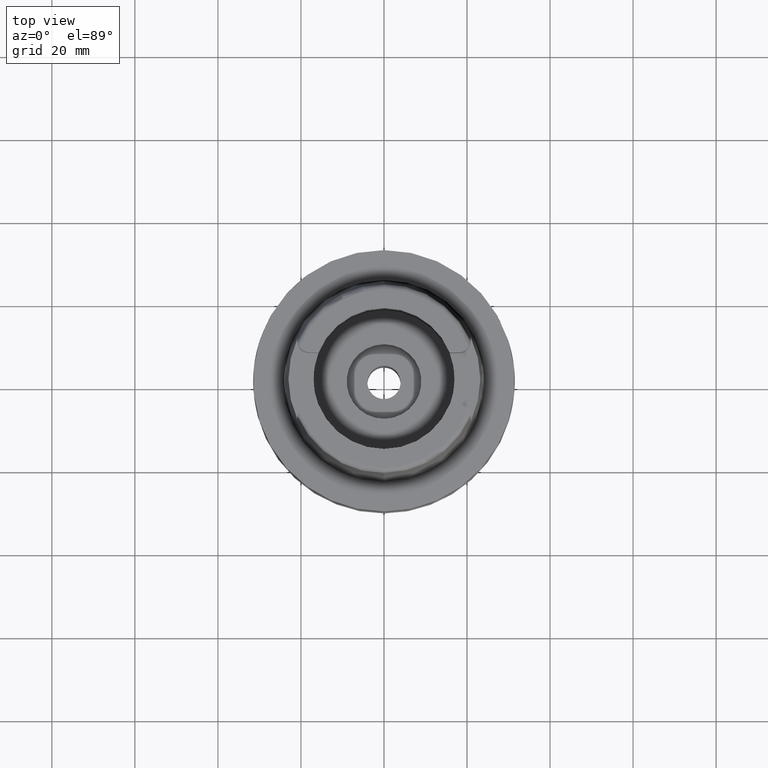
[diagram: clean part render]
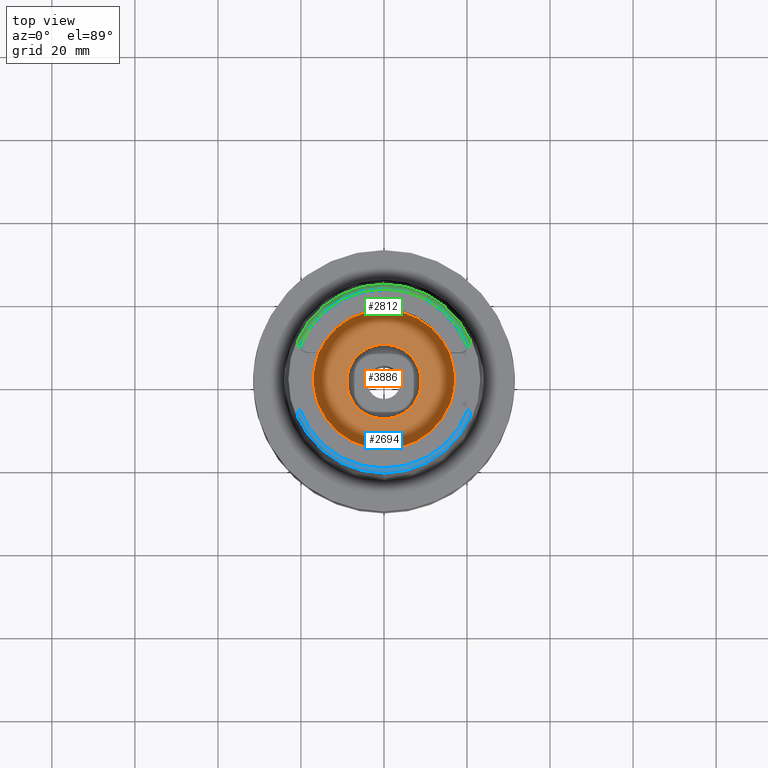
[diagram: same view with three faces highlighted in distinct colors, each labeled with its STEP entity id]
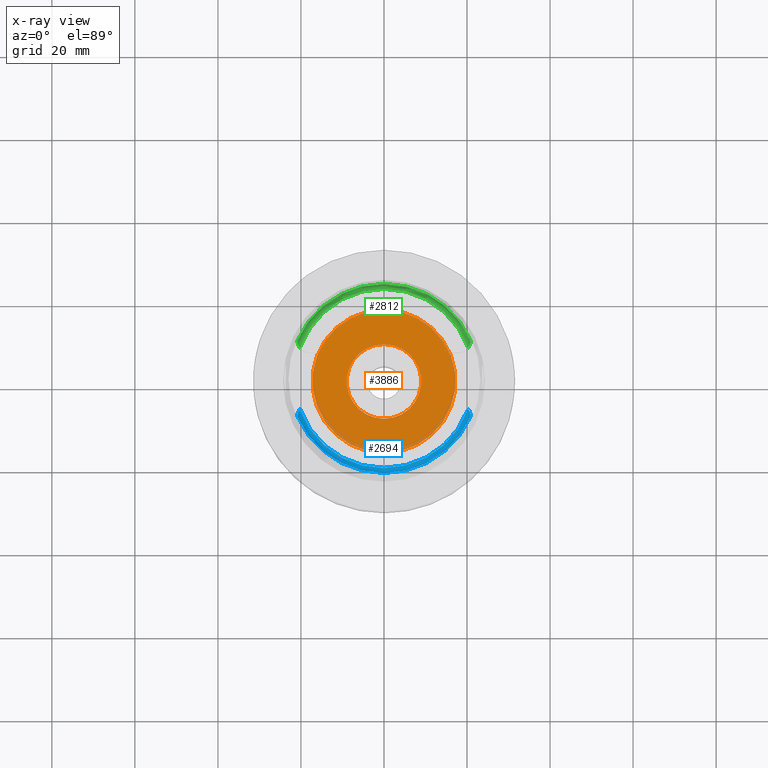
[diagram: x-ray of the same camera — body ghosted, the three highlighted faces saturated]
A machine part, top view with three faces highlighted in distinct colors.
The next image is the same camera in x-ray (body ghosted, the three faces saturated) — at least one of them is partly hidden behind the body in this view.
Their STEP definitions:

[orange] entity #3886 — the highlighted planar face has unit normal (0, 0, 1).
#1887=CARTESIAN_POINT('',(0.E0,0.E0,-9.95E0));
#1888=DIRECTION('',(0.E0,0.E0,-1.E0));
#1889=DIRECTION('',(0.E0,-1.E0,0.E0));
#1890=AXIS2_PLACEMENT_3D('',#1887,#1888,#1889);
#1895=CARTESIAN_POINT('',(0.E0,0.E0,-9.95E0));
#1896=DIRECTION('',(0.E0,0.E0,-1.E0));
#1897=DIRECTION('',(0.E0,1.E0,0.E0));
#1898=AXIS2_PLACEMENT_3D('',#1895,#1896,#1897);
#1903=CARTESIAN_POINT('',(0.E0,0.E0,-9.95E0));
#1904=DIRECTION('',(0.E0,0.E0,1.E0));
#1905=DIRECTION('',(0.E0,-1.E0,0.E0));
#1906=AXIS2_PLACEMENT_3D('',#1903,#1904,#1905);
#1911=CARTESIAN_POINT('',(0.E0,0.E0,-9.95E0));
#1912=DIRECTION('',(0.E0,0.E0,1.E0));
#1913=DIRECTION('',(0.E0,1.E0,0.E0));
#1914=AXIS2_PLACEMENT_3D('',#1911,#1912,#1913);
#2331=CARTESIAN_POINT('',(0.E0,1.725E1,-9.95E0));
#2332=VERTEX_POINT('',#2331);
#2333=CARTESIAN_POINT('',(0.E0,-1.725E1,-9.95E0));
#2334=VERTEX_POINT('',#2333);
#2335=CARTESIAN_POINT('',(0.E0,-9.E0,-9.95E0));
#2336=CARTESIAN_POINT('',(0.E0,9.E0,-9.95E0));
#2337=VERTEX_POINT('',#2335);
#2338=VERTEX_POINT('',#2336);
#3871=CARTESIAN_POINT('',(0.E0,0.E0,-9.95E0));
#3872=DIRECTION('',(0.E0,0.E0,1.E0));
#3873=DIRECTION('',(0.E0,1.E0,0.E0));
#3874=AXIS2_PLACEMENT_3D('',#3871,#3872,#3873);
#3875=PLANE('',#3874);
#3877=ORIENTED_EDGE('',*,*,#3876,.T.);
#3879=ORIENTED_EDGE('',*,*,#3878,.T.);
#3880=EDGE_LOOP('',(#3877,#3879));
#3881=FACE_OUTER_BOUND('',#3880,.F.);
#3882=ORIENTED_EDGE('',*,*,#3864,.T.);
#3883=ORIENTED_EDGE('',*,*,#3853,.T.);
#3884=EDGE_LOOP('',(#3882,#3883));
#3885=FACE_BOUND('',#3884,.F.);
#1891=CIRCLE('',#1890,1.725E1);
#1899=CIRCLE('',#1898,1.725E1);
#1907=CIRCLE('',#1906,9.E0);
#1915=CIRCLE('',#1914,9.E0);
#3853=EDGE_CURVE('',#2338,#2337,#1915,.T.);
#3864=EDGE_CURVE('',#2337,#2338,#1907,.T.);
#3876=EDGE_CURVE('',#2334,#2332,#1891,.T.);
#3878=EDGE_CURVE('',#2332,#2334,#1899,.T.);
#3886=ADVANCED_FACE('',(#3881,#3885),#3875,.T.);

[blue] entity #2694 — the highlighted toroidal blend (fillet) surface has major radius 21.5735 mm and minor (blend) radius 1.2 mm.
#185=CARTESIAN_POINT('',(0.E0,0.E0,3.2E1));
#186=DIRECTION('',(0.E0,0.E0,-1.E0));
#187=DIRECTION('',(9.395199128801E-1,-3.424942821446E-1,0.E0));
#188=AXIS2_PLACEMENT_3D('',#185,#186,#187);
#207=CARTESIAN_POINT('',(-2.086974104061E1,-9.111384044678E0,3.085992600048E1));
#208=CARTESIAN_POINT('',(-2.086967978479E1,-9.106815914010E0,3.089760295933E1));
#209=CARTESIAN_POINT('',(-2.086945080286E1,-9.088995386239E0,3.097482214906E1));
#210=CARTESIAN_POINT('',(-2.086783167195E1,-9.030866349823E0,3.109849300428E1));
#211=CARTESIAN_POINT('',(-2.086322221562E1,-8.944091743776E0,3.122174967017E1));
#212=CARTESIAN_POINT('',(-2.085297871351E1,-8.828642380834E0,3.134655940718E1));
#213=CARTESIAN_POINT('',(-2.083403211087E1,-8.687360828523E0,3.147018411212E1));
#214=CARTESIAN_POINT('',(-2.080191186563E1,-8.518140011325E0,3.159391016986E1));
#215=CARTESIAN_POINT('',(-2.075072128380E1,-8.319740744698E0,3.171566632634E1));
#216=CARTESIAN_POINT('',(-2.067242157498E1,-8.091030912758E0,3.183088479020E1));
#217=CARTESIAN_POINT('',(-2.056069500443E1,-7.841232965543E0,3.192730566798E1));
#218=CARTESIAN_POINT('',(-2.041954333658E1,-7.595455916141E0,3.198788702685E1));
#219=CARTESIAN_POINT('',(-2.031992495439E1,-7.455048288272E0,3.2E1));
#220=CARTESIAN_POINT('',(-2.026871835884E1,-7.388795116670E0,3.2E1));
#225=CARTESIAN_POINT('',(2.026871835884E1,-7.388795116670E0,3.2E1));
#226=CARTESIAN_POINT('',(2.031993739870E1,-7.455064389226E0,3.2E1));
#227=CARTESIAN_POINT('',(2.041955479103E1,-7.595479628573E0,3.198787854873E1));
#228=CARTESIAN_POINT('',(2.056062303346E1,-7.841105102634E0,3.192733889065E1));
#229=CARTESIAN_POINT('',(2.067232021676E1,-8.090777677509E0,3.183099551218E1));
#230=CARTESIAN_POINT('',(2.075064736684E1,-8.319492711218E0,3.171580459728E1));
#231=CARTESIAN_POINT('',(2.080185885196E1,-8.517900663676E0,3.159407024072E1));
#232=CARTESIAN_POINT('',(2.083400872179E1,-8.687201846741E0,3.147031638651E1));
#233=CARTESIAN_POINT('',(2.085297606444E1,-8.828610337807E0,3.134659314877E1));
#234=CARTESIAN_POINT('',(2.086322043844E1,-8.944064685723E0,3.122178628256E1));
#235=CARTESIAN_POINT('',(2.086783289008E1,-9.030890209692E0,3.109845575406E1));
#236=CARTESIAN_POINT('',(2.086945049589E1,-9.088991758235E0,3.097482444238E1));
#237=CARTESIAN_POINT('',(2.086967985546E1,-9.106815710770E0,3.089760194438E1));
#238=CARTESIAN_POINT('',(2.086974110889E1,-9.111383544988E0,3.085992740154E1));
#243=CARTESIAN_POINT('',(0.E0,0.E0,3.085992712280E1));
#244=DIRECTION('',(0.E0,0.E0,-1.E0));
#245=DIRECTION('',(9.164655183266E-1,-4.001136759952E-1,0.E0));
#246=AXIS2_PLACEMENT_3D('',#243,#244,#245);
#251=CARTESIAN_POINT('',(0.E0,0.E0,3.085992712280E1));
#252=DIRECTION('',(0.E0,0.E0,-1.E0));
#253=DIRECTION('',(0.E0,-1.E0,0.E0));
#254=AXIS2_PLACEMENT_3D('',#251,#252,#253);
#2233=CARTESIAN_POINT('',(-2.026871835884E1,-7.388795116669E0,3.2E1));
#2235=VERTEX_POINT('',#2233);
#2245=CARTESIAN_POINT('',(2.026871835884E1,-7.388795116670E0,3.2E1));
#2246=VERTEX_POINT('',#2245);
#2267=VERTEX_POINT('',#207);
#2274=VERTEX_POINT('',#238);
#2275=CARTESIAN_POINT('',(0.E0,-2.277198729362E1,3.085992712280E1));
#2276=VERTEX_POINT('',#2275);
#2679=CARTESIAN_POINT('',(0.E0,0.E0,3.08E1));
#2680=DIRECTION('',(0.E0,0.E0,1.E0));
#2681=DIRECTION('',(-6.539142454763E-4,-9.999997861981E-1,0.E0));
#2682=AXIS2_PLACEMENT_3D('',#2679,#2680,#2681);
#2683=TOROIDAL_SURFACE('',#2682,2.157348458609E1,1.2E0);
#2684=ORIENTED_EDGE('',*,*,#2668,.T.);
#2685=ORIENTED_EDGE('',*,*,#2657,.F.);
#2687=ORIENTED_EDGE('',*,*,#2686,.T.);
#2689=ORIENTED_EDGE('',*,*,#2688,.T.);
#2691=ORIENTED_EDGE('',*,*,#2690,.T.);
#2692=EDGE_LOOP('',(#2684,#2685,#2687,#2689,#2691));
#2693=FACE_OUTER_BOUND('',#2692,.F.);
#189=CIRCLE('',#188,2.157348458609E1);
#221=B_SPLINE_CURVE_WITH_KNOTS('',3,(#207,#208,#209,#210,#211,#212,#213,#214,
#215,#216,#217,#218,#219,#220),.UNSPECIFIED.,.F.,.F.,(4,1,1,1,1,1,1,1,1,1,1,4),(
0.E0,9.090909090909E-2,1.818181818182E-1,2.727272727273E-1,3.636363636364E-1,
4.545454545455E-1,5.454545454545E-1,6.363636363636E-1,7.272727272727E-1,
8.181818181818E-1,9.090909090909E-1,1.E0),.UNSPECIFIED.);
#239=B_SPLINE_CURVE_WITH_KNOTS('',3,(#225,#226,#227,#228,#229,#230,#231,#232,
#233,#234,#235,#236,#237,#238),.UNSPECIFIED.,.F.,.F.,(4,1,1,1,1,1,1,1,1,1,1,4),(
0.E0,9.090909090909E-2,1.818181818182E-1,2.727272727273E-1,3.636363636364E-1,
4.545454545455E-1,5.454545454545E-1,6.363636363636E-1,7.272727272727E-1,
8.181818181818E-1,9.090909090909E-1,1.E0),.UNSPECIFIED.);
#247=CIRCLE('',#246,2.277198729362E1);
#255=CIRCLE('',#254,2.277198729362E1);
#2657=EDGE_CURVE('',#2246,#2235,#189,.T.);
#2668=EDGE_CURVE('',#2267,#2235,#221,.T.);
#2686=EDGE_CURVE('',#2246,#2274,#239,.T.);
#2688=EDGE_CURVE('',#2274,#2276,#247,.T.);
#2690=EDGE_CURVE('',#2276,#2267,#255,.T.);
#2694=ADVANCED_FACE('',(#2693),#2683,.T.);

[green] entity #2812 — the highlighted toroidal blend (fillet) surface has major radius 21.5735 mm and minor (blend) radius 1.2 mm.
#26=CARTESIAN_POINT('',(0.E0,0.E0,3.2E1));
#27=DIRECTION('',(0.E0,0.E0,-1.E0));
#28=DIRECTION('',(-9.395199128801E-1,3.424942821446E-1,0.E0));
#29=AXIS2_PLACEMENT_3D('',#26,#27,#28);
#382=CARTESIAN_POINT('',(-2.026871835884E1,7.388795116670E0,3.2E1));
#383=CARTESIAN_POINT('',(-2.031993008549E1,7.455054927099E0,3.2E1));
#384=CARTESIAN_POINT('',(-2.041954059451E1,7.595457132657E0,3.198788265527E1));
#385=CARTESIAN_POINT('',(-2.056062169452E1,7.841100828807E0,3.192734116925E1));
#386=CARTESIAN_POINT('',(-2.067232595118E1,8.090790168727E0,3.183099088998E1));
#387=CARTESIAN_POINT('',(-2.075065968058E1,8.319532439294E0,3.171578302506E1));
#388=CARTESIAN_POINT('',(-2.080186576337E1,8.517933447297E0,3.159404785859E1));
#389=CARTESIAN_POINT('',(-2.083400855372E1,8.687206451283E0,3.147031036280E1));
#390=CARTESIAN_POINT('',(-2.085297018447E1,8.828561319512E0,3.134663788621E1));
#391=CARTESIAN_POINT('',(-2.086321831929E1,8.944029443562E0,3.122183257699E1));
#392=CARTESIAN_POINT('',(-2.086783231380E1,9.030876653826E0,3.109847574152E1));
#393=CARTESIAN_POINT('',(-2.086944997113E1,9.088966298435E0,3.097489359236E1));
#394=CARTESIAN_POINT('',(-2.086967980811E1,9.106812179574E0,3.089763106895E1));
#395=CARTESIAN_POINT('',(-2.086974110889E1,9.111383545002E0,3.085992740141E1));
#400=CARTESIAN_POINT('',(0.E0,0.E0,3.085992712280E1));
#401=DIRECTION('',(0.E0,0.E0,-1.E0));
#402=DIRECTION('',(-9.164655183266E-1,4.001136759952E-1,0.E0));
#403=AXIS2_PLACEMENT_3D('',#400,#401,#402);
#408=CARTESIAN_POINT('',(0.E0,0.E0,3.085992712280E1));
#409=DIRECTION('',(0.E0,0.E0,-1.E0));
#410=DIRECTION('',(0.E0,1.E0,0.E0));
#411=AXIS2_PLACEMENT_3D('',#408,#409,#410);
#416=CARTESIAN_POINT('',(2.086974104061E1,9.111384044671E0,3.085992600054E1));
#417=CARTESIAN_POINT('',(2.086967977557E1,9.106815226077E0,3.089760863326E1));
#418=CARTESIAN_POINT('',(2.086945038413E1,9.088985823507E0,3.097483940292E1));
#419=CARTESIAN_POINT('',(2.086783286303E1,9.030888319097E0,3.109845959378E1));
#420=CARTESIAN_POINT('',(2.086321928422E1,8.944046270181E0,3.122181022255E1));
#421=CARTESIAN_POINT('',(2.085297331818E1,8.828585154379E0,3.134661723229E1));
#422=CARTESIAN_POINT('',(2.083400382820E1,8.687171362453E0,3.147034080378E1));
#423=CARTESIAN_POINT('',(2.080185008709E1,8.517858808752E0,3.159409903928E1));
#424=CARTESIAN_POINT('',(2.075062736022E1,8.319426228065E0,3.171584145825E1));
#425=CARTESIAN_POINT('',(2.067230298184E1,8.090735745787E0,3.183101330303E1));
#426=CARTESIAN_POINT('',(2.056060623469E1,7.841072969183E0,3.192734867095E1));
#427=CARTESIAN_POINT('',(2.041954560222E1,7.595466488264E0,3.198787989292E1));
#428=CARTESIAN_POINT('',(2.031993408518E1,7.455060102067E0,3.2E1));
#429=CARTESIAN_POINT('',(2.026871835884E1,7.388795116670E0,3.2E1));
#2223=CARTESIAN_POINT('',(-2.026871835884E1,7.388795116670E0,3.2E1));
#2224=VERTEX_POINT('',#2223);
#2225=CARTESIAN_POINT('',(2.026871835884E1,7.388795116669E0,3.2E1));
#2226=VERTEX_POINT('',#2225);
#2269=VERTEX_POINT('',#395);
#2270=CARTESIAN_POINT('',(0.E0,2.277198729362E1,3.085992712280E1));
#2271=VERTEX_POINT('',#2270);
#2272=CARTESIAN_POINT('',(2.086974092012E1,9.111384045666E0,3.085992712280E1));
#2273=VERTEX_POINT('',#2272);
#2797=CARTESIAN_POINT('',(0.E0,0.E0,3.08E1));
#2798=DIRECTION('',(0.E0,0.E0,1.E0));
#2799=DIRECTION('',(-6.539142454763E-4,-9.999997861981E-1,0.E0));
#2800=AXIS2_PLACEMENT_3D('',#2797,#2798,#2799);
#2801=TOROIDAL_SURFACE('',#2800,2.157348458609E1,1.2E0);
#2803=ORIENTED_EDGE('',*,*,#2802,.T.);
#2805=ORIENTED_EDGE('',*,*,#2804,.T.);
#2807=ORIENTED_EDGE('',*,*,#2806,.T.);
#2808=ORIENTED_EDGE('',*,*,#2786,.T.);
#2809=ORIENTED_EDGE('',*,*,#2556,.F.);
#2810=EDGE_LOOP('',(#2803,#2805,#2807,#2808,#2809));
#2811=FACE_OUTER_BOUND('',#2810,.F.);
#30=CIRCLE('',#29,2.157348458609E1);
#396=B_SPLINE_CURVE_WITH_KNOTS('',3,(#382,#383,#384,#385,#386,#387,#388,#389,
#390,#391,#392,#393,#394,#395),.UNSPECIFIED.,.F.,.F.,(4,1,1,1,1,1,1,1,1,1,1,4),(
0.E0,9.090909090909E-2,1.818181818182E-1,2.727272727273E-1,3.636363636364E-1,
4.545454545455E-1,5.454545454545E-1,6.363636363636E-1,7.272727272727E-1,
8.181818181818E-1,9.090909090909E-1,1.E0),.UNSPECIFIED.);
#404=CIRCLE('',#403,2.277198729362E1);
#412=CIRCLE('',#411,2.277198729362E1);
#430=B_SPLINE_CURVE_WITH_KNOTS('',3,(#416,#417,#418,#419,#420,#421,#422,#423,
#424,#425,#426,#427,#428,#429),.UNSPECIFIED.,.F.,.F.,(4,1,1,1,1,1,1,1,1,1,1,4),(
0.E0,9.090909090909E-2,1.818181818182E-1,2.727272727273E-1,3.636363636364E-1,
4.545454545455E-1,5.454545454545E-1,6.363636363636E-1,7.272727272727E-1,
8.181818181818E-1,9.090909090909E-1,1.E0),.UNSPECIFIED.);
#2556=EDGE_CURVE('',#2224,#2226,#30,.T.);
#2786=EDGE_CURVE('',#2273,#2226,#430,.T.);
#2802=EDGE_CURVE('',#2224,#2269,#396,.T.);
#2804=EDGE_CURVE('',#2269,#2271,#404,.T.);
#2806=EDGE_CURVE('',#2271,#2273,#412,.T.);
#2812=ADVANCED_FACE('',(#2811),#2801,.T.);